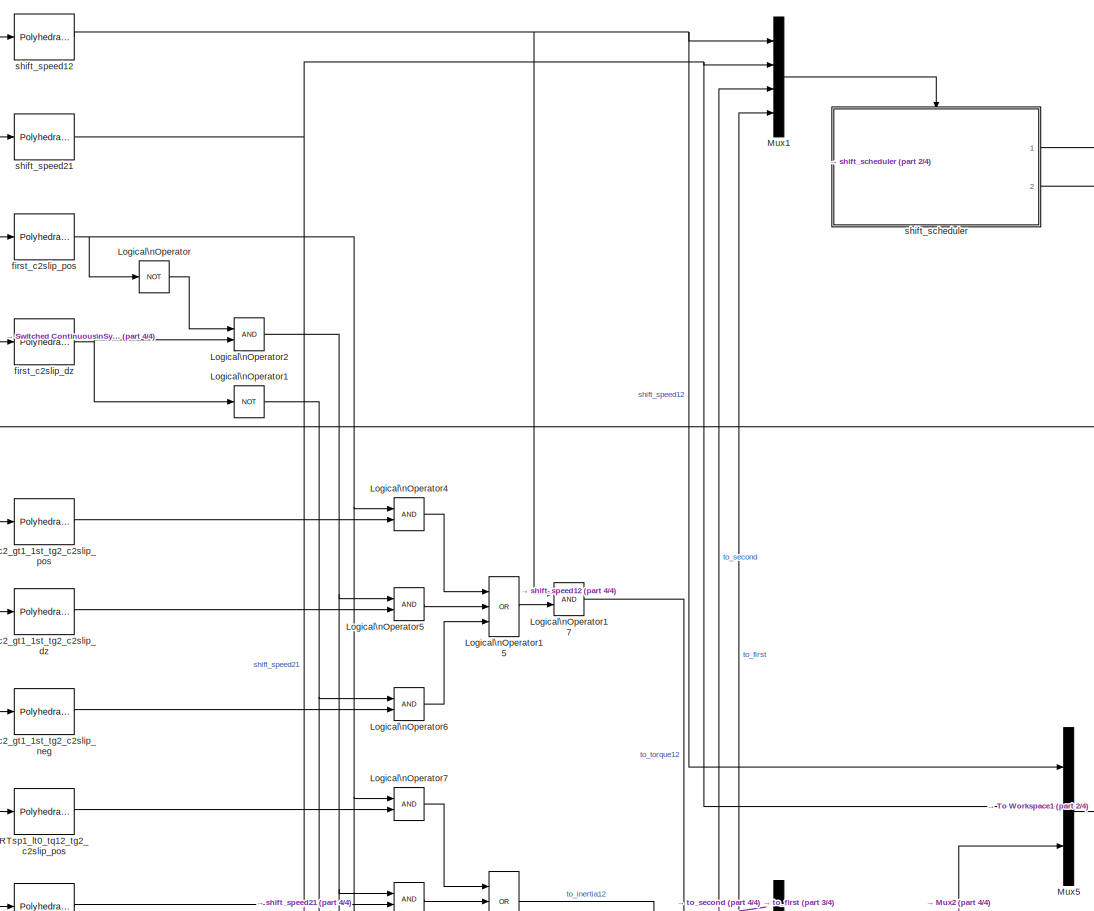
[diagram: root canvas - part 1/4, top center region]
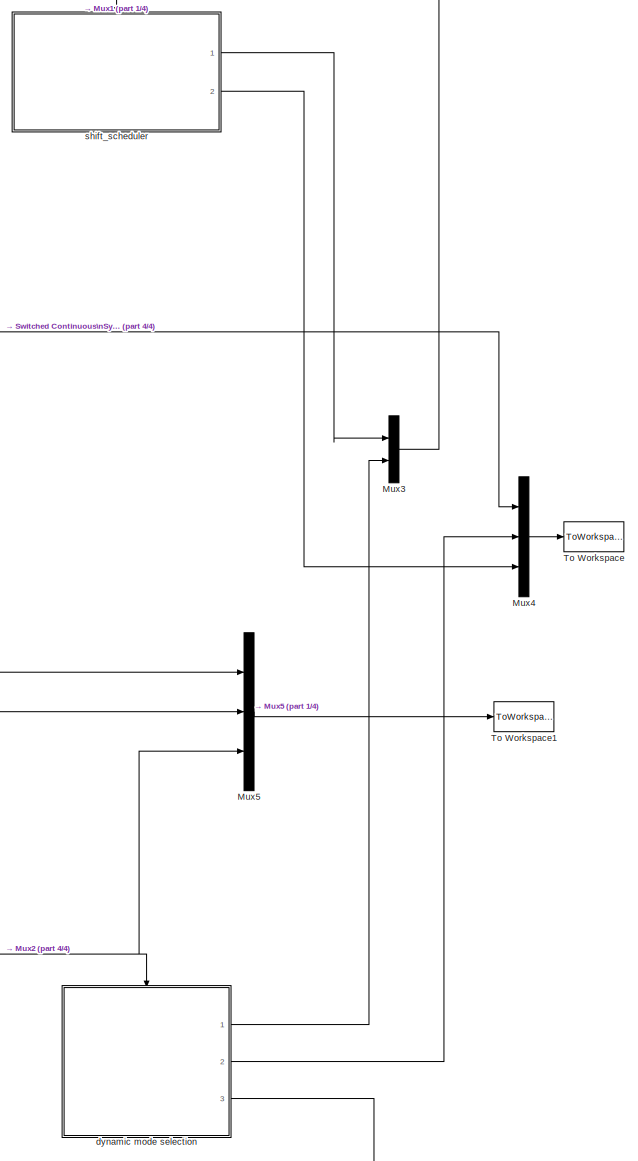
[diagram: root canvas - part 2/4, middle right region]
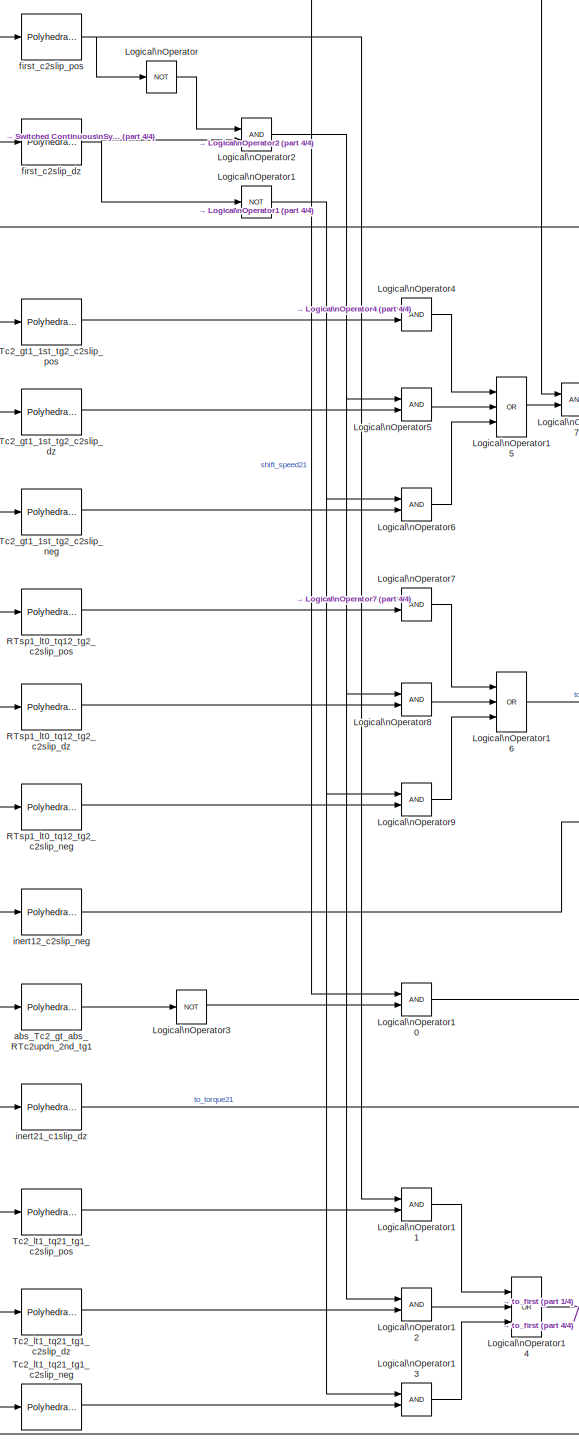
[diagram: root canvas - part 3/4, center side, full height]
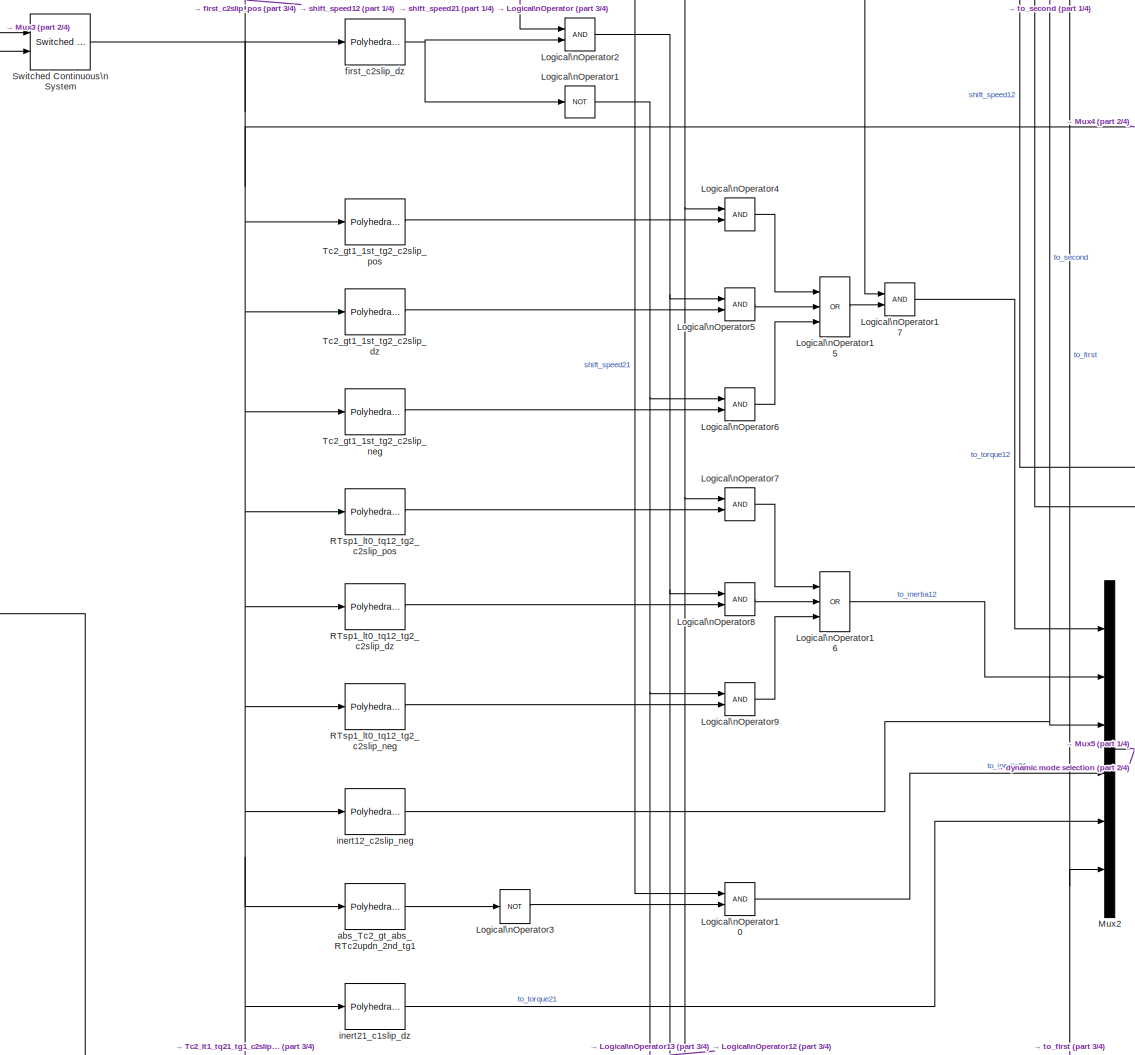
[diagram: root canvas - part 4/4, central region]
MODEL Powertrain_CheckMate_ver
KIND model
BLOCK [Logic] Logical\nOperator
  Operator = NOT
  Ports = [1, 1]
  SID = 18
BLOCK [Logic] Logical\nOperator1
  Operator = NOT
  Ports = [1, 1]
  SID = 19
BLOCK [Logic] Logical\nOperator10
  Ports = [2, 1]
  SID = 29
BLOCK [Logic] Logical\nOperator11
  Ports = [2, 1]
  SID = 30
BLOCK [Logic] Logical\nOperator12
  Ports = [2, 1]
  SID = 31
BLOCK [Logic] Logical\nOperator13
  Ports = [2, 1]
  SID = 32
BLOCK [Logic] Logical\nOperator14
  Inputs = 3
  Operator = OR
  Ports = [3, 1]
  SID = 33
BLOCK [Logic] Logical\nOperator15
  Inputs = 3
  Operator = OR
  Ports = [3, 1]
  SID = 34
BLOCK [Logic] Logical\nOperator16
  Inputs = 3
  Operator = OR
  Ports = [3, 1]
  SID = 35
BLOCK [Logic] Logical\nOperator17
  Ports = [2, 1]
  SID = 36
BLOCK [Logic] Logical\nOperator2
  Ports = [2, 1]
  SID = 20
BLOCK [Logic] Logical\nOperator3
  Operator = NOT
  Ports = [1, 1]
  SID = 28
BLOCK [Logic] Logical\nOperator4
  Ports = [2, 1]
  SID = 22
BLOCK [Logic] Logical\nOperator5
  Ports = [2, 1]
  SID = 23
BLOCK [Logic] Logical\nOperator6
  Ports = [2, 1]
  SID = 24
BLOCK [Logic] Logical\nOperator7
  Ports = [2, 1]
  SID = 25
BLOCK [Logic] Logical\nOperator8
  Ports = [2, 1]
  SID = 26
BLOCK [Logic] Logical\nOperator9
  Ports = [2, 1]
  SID = 27
BLOCK [Mux] Mux1
  DisplayOption = bar
  Ports = [4, 1]
  SID = 39
BLOCK [Mux] Mux2
  DisplayOption = bar
  Inputs = 6
  Ports = [6, 1]
  SID = 40
BLOCK [Mux] Mux3
  DisplayOption = bar
  Inputs = 2
  Ports = [2, 1]
  SID = 43
BLOCK [Mux] Mux4
  DisplayOption = bar
  Inputs = 3
  Ports = [3, 1]
  SID = 44
BLOCK [Mux] Mux5
  DisplayOption = bar
  Inputs = 3
  Ports = [3, 1]
  SID = 49
BLOCK [Reference] RTsp1_lt0_tq12_tg2_c2slip_dz  REF=cmlib/Polyhedral\nThreshold
  FunctionWithSeparateData = off
  GeneratePreprocessorConditionals = off
  Ports = [1, 1]
  RTWMemSecDataConstants = Inherit from model
  RTWMemSecDataInternal = Inherit from model
  RTWMemSecDataParameters = Inherit from model
  RTWMemSecFuncExecute = Inherit from model
  RTWMemSecFuncInitTerm = Inherit from model
  SID = 12
  ShowPortLabels = FromPortIcon
  SourceBlock = cmlib/Polyhedral\nThreshold
  SourceType = PolyhedralThreshold
  SystemSampleTime = -1
  polyhedron = RTsp1_lt0_tq12_tg2_c2slip_dz
BLOCK [Reference] RTsp1_lt0_tq12_tg2_c2slip_neg  REF=cmlib/Polyhedral\nThreshold
  FunctionWithSeparateData = off
  GeneratePreprocessorConditionals = off
  Ports = [1, 1]
  RTWMemSecDataConstants = Inherit from model
  RTWMemSecDataInternal = Inherit from model
  RTWMemSecDataParameters = Inherit from model
  RTWMemSecFuncExecute = Inherit from model
  RTWMemSecFuncInitTerm = Inherit from model
  SID = 9
  ShowPortLabels = FromPortIcon
  SourceBlock = cmlib/Polyhedral\nThreshold
  SourceType = PolyhedralThreshold
  SystemSampleTime = -1
  polyhedron = RTsp1_lt0_tq12_tg2_c2slip_neg
BLOCK [Reference] RTsp1_lt0_tq12_tg2_c2slip_pos  REF=cmlib/Polyhedral\nThreshold
  FunctionWithSeparateData = off
  GeneratePreprocessorConditionals = off
  Ports = [1, 1]
  RTWMemSecDataConstants = Inherit from model
  RTWMemSecDataInternal = Inherit from model
  RTWMemSecDataParameters = Inherit from model
  RTWMemSecFuncExecute = Inherit from model
  RTWMemSecFuncInitTerm = Inherit from model
  SID = 8
  ShowPortLabels = FromPortIcon
  SourceBlock = cmlib/Polyhedral\nThreshold
  SourceType = PolyhedralThreshold
  SystemSampleTime = -1
  polyhedron = RTsp1_lt0_tq12_tg2_c2slip_pos
BLOCK [Reference] Switched Continuous\nSystem  REF=cmlib/Switched Continuous\nSystem
  AR = hsprb_AR
  ICS = hsprb_ICS
  PaCs = []
  Ports = [2, 1]
  SID = 47
  SourceBlock = cmlib/Switched Continuous\nSystem
  SourceType = SwitchedContinuousSystem
  nu = 2
  nup = []
  nx = 6
  nz = []
  p0 = []
  swfunc = hsprb_dynamics
  use_param = off
  use_reset = on
  use_sd = off
  x0 = [0;0;0;0;0;0]
BLOCK [Reference] Tc2_gt1_1st_tg2_c2slip_dz  REF=cmlib/Polyhedral\nThreshold
  FunctionWithSeparateData = off
  GeneratePreprocessorConditionals = off
  Ports = [1, 1]
  RTWMemSecDataConstants = Inherit from model
  RTWMemSecDataInternal = Inherit from model
  RTWMemSecDataParameters = Inherit from model
  RTWMemSecFuncExecute = Inherit from model
  RTWMemSecFuncInitTerm = Inherit from model
  SID = 6
  ShowPortLabels = FromPortIcon
  SourceBlock = cmlib/Polyhedral\nThreshold
  SourceType = PolyhedralThreshold
  SystemSampleTime = -1
  polyhedron = Tc2_gt1_1st_tg2_c2slip_dz
BLOCK [Reference] Tc2_gt1_1st_tg2_c2slip_neg  REF=cmlib/Polyhedral\nThreshold
  FunctionWithSeparateData = off
  GeneratePreprocessorConditionals = off
  Ports = [1, 1]
  RTWMemSecDataConstants = Inherit from model
  RTWMemSecDataInternal = Inherit from model
  RTWMemSecDataParameters = Inherit from model
  RTWMemSecFuncExecute = Inherit from model
  RTWMemSecFuncInitTerm = Inherit from model
  SID = 7
  ShowPortLabels = FromPortIcon
  SourceBlock = cmlib/Polyhedral\nThreshold
  SourceType = PolyhedralThreshold
  SystemSampleTime = -1
  polyhedron = Tc2_gt1_1st_tg2_c2slip_neg
BLOCK [Reference] Tc2_gt1_1st_tg2_c2slip_pos  REF=cmlib/Polyhedral\nThreshold
  FunctionWithSeparateData = off
  GeneratePreprocessorConditionals = off
  Ports = [1, 1]
  RTWMemSecDataConstants = Inherit from model
  RTWMemSecDataInternal = Inherit from model
  RTWMemSecDataParameters = Inherit from model
  RTWMemSecFuncExecute = Inherit from model
  RTWMemSecFuncInitTerm = Inherit from model
  SID = 13
  ShowPortLabels = FromPortIcon
  SourceBlock = cmlib/Polyhedral\nThreshold
  SourceType = PolyhedralThreshold
  SystemSampleTime = -1
  polyhedron = Tc2_gt1_1st_tg2_c2slip_pos
BLOCK [Reference] Tc2_lt1_tq21_tg1_c2slip_dz  REF=cmlib/Polyhedral\nThreshold
  FunctionWithSeparateData = off
  GeneratePreprocessorConditionals = off
  Ports = [1, 1]
  RTWMemSecDataConstants = Inherit from model
  RTWMemSecDataInternal = Inherit from model
  RTWMemSecDataParameters = Inherit from model
  RTWMemSecFuncExecute = Inherit from model
  RTWMemSecFuncInitTerm = Inherit from model
  SID = 17
  ShowPortLabels = FromPortIcon
  SourceBlock = cmlib/Polyhedral\nThreshold
  SourceType = PolyhedralThreshold
  SystemSampleTime = -1
  polyhedron = Tc2_lt1_tq21_tg1_c2slip_dz
BLOCK [Reference] Tc2_lt1_tq21_tg1_c2slip_neg  REF=cmlib/Polyhedral\nThreshold
  FunctionWithSeparateData = off
  GeneratePreprocessorConditionals = off
  Ports = [1, 1]
  RTWMemSecDataConstants = Inherit from model
  RTWMemSecDataInternal = Inherit from model
  RTWMemSecDataParameters = Inherit from model
  RTWMemSecFuncExecute = Inherit from model
  RTWMemSecFuncInitTerm = Inherit from model
  SID = 16
  ShowPortLabels = FromPortIcon
  SourceBlock = cmlib/Polyhedral\nThreshold
  SourceType = PolyhedralThreshold
  SystemSampleTime = -1
  polyhedron = Tc2_lt1_tq21_tg1_c2slip_neg
BLOCK [Reference] Tc2_lt1_tq21_tg1_c2slip_pos  REF=cmlib/Polyhedral\nThreshold
  FunctionWithSeparateData = off
  GeneratePreprocessorConditionals = off
  Ports = [1, 1]
  RTWMemSecDataConstants = Inherit from model
  RTWMemSecDataInternal = Inherit from model
  RTWMemSecDataParameters = Inherit from model
  RTWMemSecFuncExecute = Inherit from model
  RTWMemSecFuncInitTerm = Inherit from model
  SID = 15
  ShowPortLabels = FromPortIcon
  SourceBlock = cmlib/Polyhedral\nThreshold
  SourceType = PolyhedralThreshold
  SystemSampleTime = -1
  polyhedron = Tc2_lt1_tq21_tg1_c2slip_pos
BLOCK [ToWorkspace] To Workspace
  MaxDataPoints = inf
  Ports = [1]
  SID = 45
  SampleTime = -1
  SaveFormat = Structure
  VariableName = states
BLOCK [ToWorkspace] To Workspace1
  MaxDataPoints = inf
  Ports = [1]
  SID = 46
  SampleTime = -1
  SaveFormat = Structure
  VariableName = events
BLOCK [Reference] abs_Tc2_gt_abs_RTc2updn_2nd_tg1  REF=cmlib/Polyhedral\nThreshold
  FunctionWithSeparateData = off
  GeneratePreprocessorConditionals = off
  Ports = [1, 1]
  RTWMemSecDataConstants = Inherit from model
  RTWMemSecDataInternal = Inherit from model
  RTWMemSecDataParameters = Inherit from model
  RTWMemSecFuncExecute = Inherit from model
  RTWMemSecFuncInitTerm = Inherit from model
  SID = 11
  ShowPortLabels = FromPortIcon
  SourceBlock = cmlib/Polyhedral\nThreshold
  SourceType = PolyhedralThreshold
  SystemSampleTime = -1
  polyhedron = abs_Tc2_gt_abs_RTc2updn_2nd_tg1
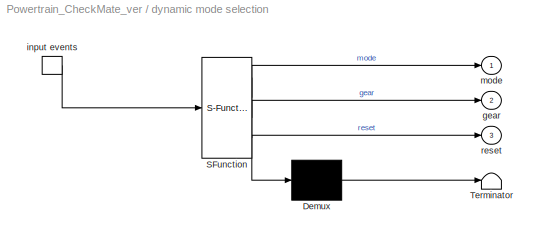
BLOCK [SubSystem] dynamic mode selection
  FunctionWithSeparateData = off
  MaskDescription = Stateflow diagram
  MaskDisplay = plot(sf('Private','sfblk','xIcon'),sf('Private','sfblk','yIcon'));text(0.5,0,sf('Private', 'sfblk', 'tIcon'),'HorizontalAl','Center','VerticalAl','Bottom');
  MaskHideContents = off
  MaskIconFrame = off
  MaskIconOpaque = off
  MaskIconRotate = none
  MaskIconUnits = autoscale
  MaskPortRotate = default
  MaskSelfModifiable = on
  MaskType = Stateflow
  MinAlgLoopOccurrences = off
  Opaque = off
  PermitHierarchicalResolution = ExplicitOnly
  Ports = [0, 3, 0, 1]
  PropExecContextOutsideSubsystem = off
  RTWSystemCode = Auto
  RequestExecContextInheritance = off
  SID = 42
  TreatAsAtomicUnit = on
BLOCK [Demux] dynamic mode selection/ Demux 
  Outputs = 1
  Ports = [1, 1]
  SID = 42::22
BLOCK [S-Function] dynamic mode selection/ SFunction 
  EnableBusSupport = on
  FunctionName = sf_sfun
  PortCounts = [1 4]
  Ports = [1, 4]
  SID = 42::21
  Tag = Stateflow S-Function Powertrain_CheckMate_ver 2
BLOCK [Terminator] dynamic mode selection/ Terminator 
  SID = 42::24
BLOCK [TriggerPort] dynamic mode selection/ input events 
  Ports = [0, 1]
  SID = 42::42
  ShowOutputPort = on
BLOCK [Outport] dynamic mode selection/gear
  IconDisplay = Port number
  Port = 2
  SID = 42::42
BLOCK [Outport] dynamic mode selection/mode
  IconDisplay = Port number
  SID = 42::42
BLOCK [Outport] dynamic mode selection/reset
  IconDisplay = Port number
  Port = 3
  SID = 42::42
BLOCK [Reference] first_c2slip_dz  REF=cmlib/Polyhedral\nThreshold
  FunctionWithSeparateData = off
  GeneratePreprocessorConditionals = off
  Ports = [1, 1]
  RTWMemSecDataConstants = Inherit from model
  RTWMemSecDataInternal = Inherit from model
  RTWMemSecDataParameters = Inherit from model
  RTWMemSecFuncExecute = Inherit from model
  RTWMemSecFuncInitTerm = Inherit from model
  SID = 5
  ShowPortLabels = FromPortIcon
  SourceBlock = cmlib/Polyhedral\nThreshold
  SourceType = PolyhedralThreshold
  SystemSampleTime = -1
  polyhedron = first_c2slip_dz
BLOCK [Reference] first_c2slip_pos  REF=cmlib/Polyhedral\nThreshold
  FunctionWithSeparateData = off
  GeneratePreprocessorConditionals = off
  Ports = [1, 1]
  RTWMemSecDataConstants = Inherit from model
  RTWMemSecDataInternal = Inherit from model
  RTWMemSecDataParameters = Inherit from model
  RTWMemSecFuncExecute = Inherit from model
  RTWMemSecFuncInitTerm = Inherit from model
  SID = 3
  ShowPortLabels = FromPortIcon
  SourceBlock = cmlib/Polyhedral\nThreshold
  SourceType = PolyhedralThreshold
  SystemSampleTime = -1
  polyhedron = first_c2slip_pos
BLOCK [Reference] inert12_c2slip_neg  REF=cmlib/Polyhedral\nThreshold
  FunctionWithSeparateData = off
  GeneratePreprocessorConditionals = off
  Ports = [1, 1]
  RTWMemSecDataConstants = Inherit from model
  RTWMemSecDataInternal = Inherit from model
  RTWMemSecDataParameters = Inherit from model
  RTWMemSecFuncExecute = Inherit from model
  RTWMemSecFuncInitTerm = Inherit from model
  SID = 10
  ShowPortLabels = FromPortIcon
  SourceBlock = cmlib/Polyhedral\nThreshold
  SourceType = PolyhedralThreshold
  SystemSampleTime = -1
  polyhedron = inert12_c2slip_neg
BLOCK [Reference] inert21_c1slip_dz  REF=cmlib/Polyhedral\nThreshold
  FunctionWithSeparateData = off
  GeneratePreprocessorConditionals = off
  Ports = [1, 1]
  RTWMemSecDataConstants = Inherit from model
  RTWMemSecDataInternal = Inherit from model
  RTWMemSecDataParameters = Inherit from model
  RTWMemSecFuncExecute = Inherit from model
  RTWMemSecFuncInitTerm = Inherit from model
  SID = 14
  ShowPortLabels = FromPortIcon
  SourceBlock = cmlib/Polyhedral\nThreshold
  SourceType = PolyhedralThreshold
  SystemSampleTime = -1
  polyhedron = inert21_c1slip_dz
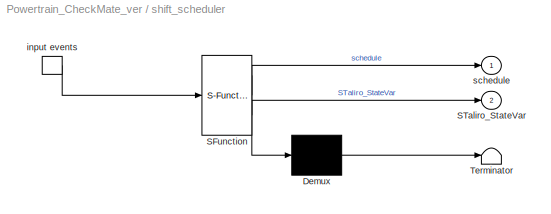
BLOCK [SubSystem] shift_scheduler
  FunctionWithSeparateData = off
  MaskDescription = Stateflow diagram
  MaskDisplay = plot(sf('Private','sfblk','xIcon'),sf('Private','sfblk','yIcon'));text(0.5,0,sf('Private', 'sfblk', 'tIcon'),'HorizontalAl','Center','VerticalAl','Bottom');
  MaskHideContents = off
  MaskIconFrame = off
  MaskIconOpaque = off
  MaskIconRotate = none
  MaskIconUnits = autoscale
  MaskPortRotate = default
  MaskSelfModifiable = on
  MaskType = Stateflow
  MinAlgLoopOccurrences = off
  Opaque = off
  PermitHierarchicalResolution = ExplicitOnly
  Ports = [0, 2, 0, 1]
  PropExecContextOutsideSubsystem = off
  RTWSystemCode = Auto
  RequestExecContextInheritance = off
  SID = 41
  TreatAsAtomicUnit = on
BLOCK [Demux] shift_scheduler/ Demux 
  Outputs = 1
  Ports = [1, 1]
  SID = 41::22
BLOCK [S-Function] shift_scheduler/ SFunction 
  EnableBusSupport = on
  FunctionName = sf_sfun
  PortCounts = [1 3]
  Ports = [1, 3]
  SID = 41::21
  Tag = Stateflow S-Function Powertrain_CheckMate_ver 1
BLOCK [Terminator] shift_scheduler/ Terminator 
  SID = 41::24
BLOCK [TriggerPort] shift_scheduler/ input events 
  Ports = [0, 1]
  SID = 41::41
  ShowOutputPort = on
BLOCK [Outport] shift_scheduler/STaliro_StateVar
  IconDisplay = Port number
  Port = 2
  SID = 41::20
BLOCK [Outport] shift_scheduler/schedule
  IconDisplay = Port number
  SID = 41::41
BLOCK [Reference] shift_speed12  REF=cmlib/Polyhedral\nThreshold
  FunctionWithSeparateData = off
  GeneratePreprocessorConditionals = off
  Ports = [1, 1]
  RTWMemSecDataConstants = Inherit from model
  RTWMemSecDataInternal = Inherit from model
  RTWMemSecDataParameters = Inherit from model
  RTWMemSecFuncExecute = Inherit from model
  RTWMemSecFuncInitTerm = Inherit from model
  SID = 2
  ShowPortLabels = FromPortIcon
  SourceBlock = cmlib/Polyhedral\nThreshold
  SourceType = PolyhedralThreshold
  SystemSampleTime = -1
  polyhedron = shift_speed12
BLOCK [Reference] shift_speed21  REF=cmlib/Polyhedral\nThreshold
  FunctionWithSeparateData = off
  GeneratePreprocessorConditionals = off
  Ports = [1, 1]
  RTWMemSecDataConstants = Inherit from model
  RTWMemSecDataInternal = Inherit from model
  RTWMemSecDataParameters = Inherit from model
  RTWMemSecFuncExecute = Inherit from model
  RTWMemSecFuncInitTerm = Inherit from model
  SID = 4
  ShowPortLabels = FromPortIcon
  SourceBlock = cmlib/Polyhedral\nThreshold
  SourceType = PolyhedralThreshold
  SystemSampleTime = -1
  polyhedron = shift_speed21
LINE Logical\nOperator10:1 -> Mux2:4
LINE Logical\nOperator11:1 -> Logical\nOperator14:1
LINE Logical\nOperator12:1 -> Logical\nOperator14:2
LINE Logical\nOperator13:1 -> Logical\nOperator14:3
NET Logical\nOperator14:1 -> Mux1:4, Mux2:6
LINE Logical\nOperator15:1 -> Logical\nOperator17:2
LINE Logical\nOperator16:1 -> Mux2:2
LINE Logical\nOperator17:1 -> Mux2:1
NET Logical\nOperator1:1 -> Logical\nOperator13:1, Logical\nOperator6:1, Logical\nOperator9:1
NET Logical\nOperator2:1 -> Logical\nOperator12:1, Logical\nOperator5:1, Logical\nOperator8:1
LINE Logical\nOperator3:1 -> Logical\nOperator10:2
LINE Logical\nOperator4:1 -> Logical\nOperator15:1
LINE Logical\nOperator5:1 -> Logical\nOperator15:2
LINE Logical\nOperator6:1 -> Logical\nOperator15:3
LINE Logical\nOperator7:1 -> Logical\nOperator16:1
LINE Logical\nOperator8:1 -> Logical\nOperator16:2
LINE Logical\nOperator9:1 -> Logical\nOperator16:3
LINE Logical\nOperator:1 -> Logical\nOperator2:1
LINE Mux1:1 -> shift_scheduler:trigger
NET Mux2:1 -> Mux5:3, dynamic mode selection:trigger
LINE Mux3:1 -> Switched Continuous\nSystem:1
LINE Mux4:1 -> To Workspace:1
LINE Mux5:1 -> To Workspace1:1
LINE RTsp1_lt0_tq12_tg2_c2slip_dz:1 -> Logical\nOperator8:2
LINE RTsp1_lt0_tq12_tg2_c2slip_neg:1 -> Logical\nOperator9:2
LINE RTsp1_lt0_tq12_tg2_c2slip_pos:1 -> Logical\nOperator7:2
NET Switched Continuous\nSystem:1 -> Mux4:1, RTsp1_lt0_tq12_tg2_c2slip_dz:1, RTsp1_lt0_tq12_tg2_c2slip_neg:1, RTsp1_lt0_tq12_tg2_c2slip_pos:1, Tc2_gt1_1st_tg2_c2slip_dz:1, Tc2_gt1_1st_tg2_c2slip_neg:1, Tc2_gt1_1st_tg2_c2slip_pos:1, Tc2_lt1_tq21_tg1_c2slip_dz:1, Tc2_lt1_tq21_tg1_c2slip_neg:1, Tc2_lt1_tq21_tg1_c2slip_pos:1, abs_Tc2_gt_abs_RTc2updn_2nd_tg1:1, first_c2slip_dz:1, first_c2slip_pos:1, inert12_c2slip_neg:1, inert21_c1slip_dz:1, shift_speed12:1, shift_speed21:1
LINE Tc2_gt1_1st_tg2_c2slip_dz:1 -> Logical\nOperator5:2
LINE Tc2_gt1_1st_tg2_c2slip_neg:1 -> Logical\nOperator6:2
LINE Tc2_gt1_1st_tg2_c2slip_pos:1 -> Logical\nOperator4:2
LINE Tc2_lt1_tq21_tg1_c2slip_dz:1 -> Logical\nOperator12:2
LINE Tc2_lt1_tq21_tg1_c2slip_neg:1 -> Logical\nOperator13:2
LINE Tc2_lt1_tq21_tg1_c2slip_pos:1 -> Logical\nOperator11:2
LINE abs_Tc2_gt_abs_RTc2updn_2nd_tg1:1 -> Logical\nOperator3:1
LINE dynamic mode selection/ Demux :1 -> dynamic mode selection/ Terminator :1
LINE dynamic mode selection/ SFunction :1 -> dynamic mode selection/ Demux :1
LINE dynamic mode selection/ SFunction :2 -> dynamic mode selection/mode:1
LINE dynamic mode selection/ SFunction :3 -> dynamic mode selection/gear:1
LINE dynamic mode selection/ SFunction :4 -> dynamic mode selection/reset:1
LINE dynamic mode selection/ input events :1 -> dynamic mode selection/ SFunction :1
LINE dynamic mode selection:1 -> Mux3:2
LINE dynamic mode selection:2 -> Mux4:2
LINE dynamic mode selection:3 -> Switched Continuous\nSystem:2
NET first_c2slip_dz:1 -> Logical\nOperator1:1, Logical\nOperator2:2
NET first_c2slip_pos:1 -> Logical\nOperator11:1, Logical\nOperator4:1, Logical\nOperator7:1, Logical\nOperator:1
NET inert12_c2slip_neg:1 -> Mux1:3, Mux2:3
LINE inert21_c1slip_dz:1 -> Mux2:5
LINE shift_scheduler/ Demux :1 -> shift_scheduler/ Terminator :1
LINE shift_scheduler/ SFunction :1 -> shift_scheduler/ Demux :1
LINE shift_scheduler/ SFunction :2 -> shift_scheduler/schedule:1
LINE shift_scheduler/ SFunction :3 -> shift_scheduler/STaliro_StateVar:1
LINE shift_scheduler/ input events :1 -> shift_scheduler/ SFunction :1
LINE shift_scheduler:1 -> Mux3:1
LINE shift_scheduler:2 -> Mux4:3
NET shift_speed12:1 -> Logical\nOperator17:1, Mux1:1, Mux5:1
NET shift_speed21:1 -> Logical\nOperator10:1, Mux1:2, Mux5:2
note: NET lines group one-source signal fan-out (src -> all destinations, sorted); 1:1 wires keep LINE
CHART shift_scheduler states=4 transitions=7
  STATE_LABEL 'first_gear\\nentry: schedule =1;\\nSTaliro_StateVar = 1;'
  STATE_LABEL 'transition21_shifting\\nentry:schedule = 4;\\nSTaliro_StateVar = 4;'
  STATE_LABEL 'second_gear\\nentry: schedule =3;\\nSTaliro_StateVar = 3;'
  STATE_LABEL 'transition12_shifting\\nentry : schedule = 2;\\nSTaliro_StateVar = 2;'
CHART dynamic mode selection states=6 transitions=7
  STATE_LABEL 'first\\nentry: mode = 1;\\ngear = 1;'
  STATE_LABEL 'torque12\\nentry:mode = 2;\\ngear=1.5;'
  STATE_LABEL 'torque21\\nentry:mode = 6;\\ngear=1.5;'
  STATE_LABEL 'inertia12\\nentry: mode=3;\\ngear=1.5;'
  STATE_LABEL 'inertia21\\nentry:mode = 5;\\ngear=1.5;'
  STATE_LABEL 'second\\nentry: mode = 4;\\ngear=2;'
